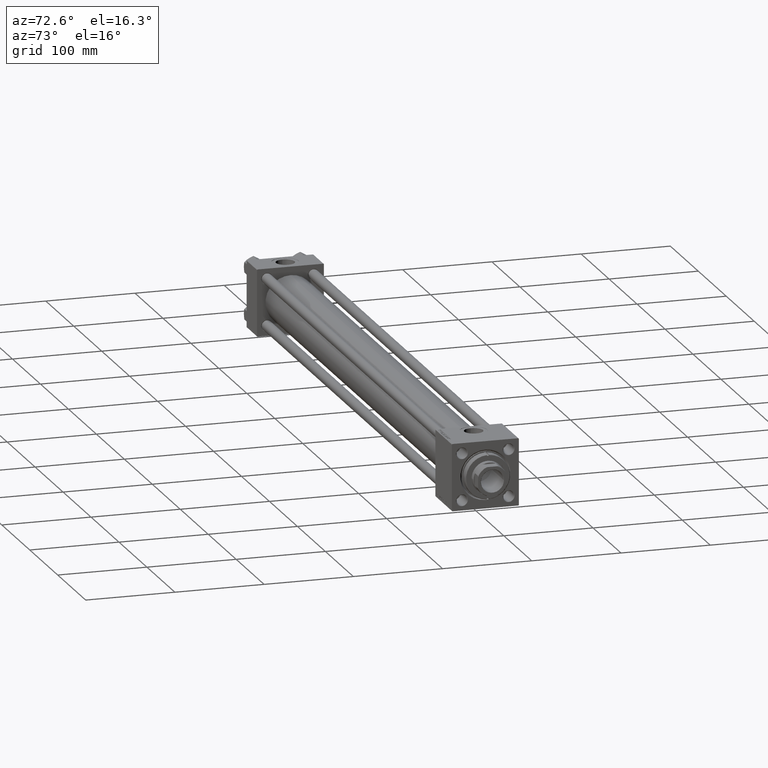
[diagram: clean part render]
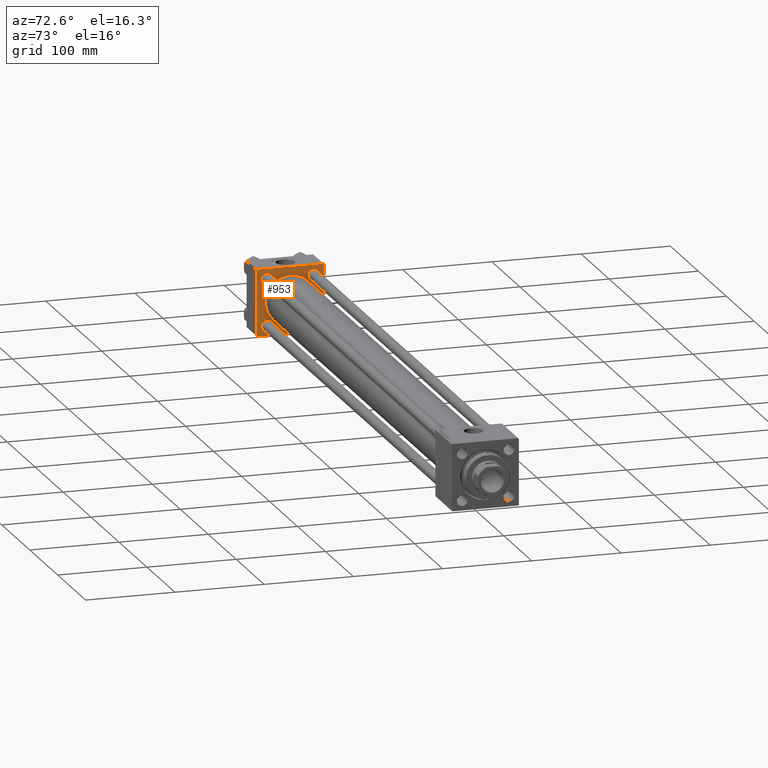
[diagram: same view with one face highlighted and labeled with its STEP entity id]
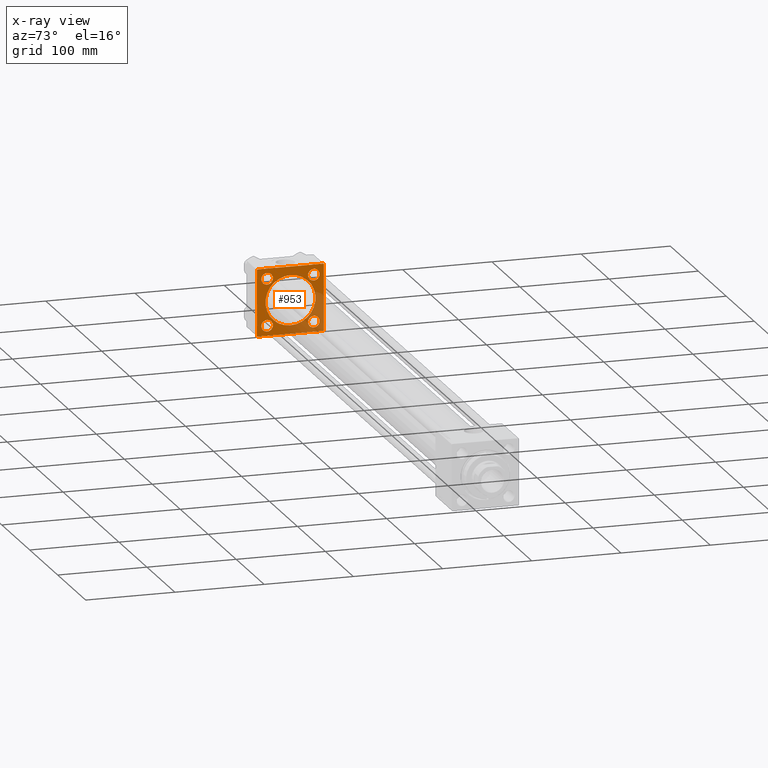
[diagram: x-ray of the same camera — body ghosted, the highlighted face saturated]
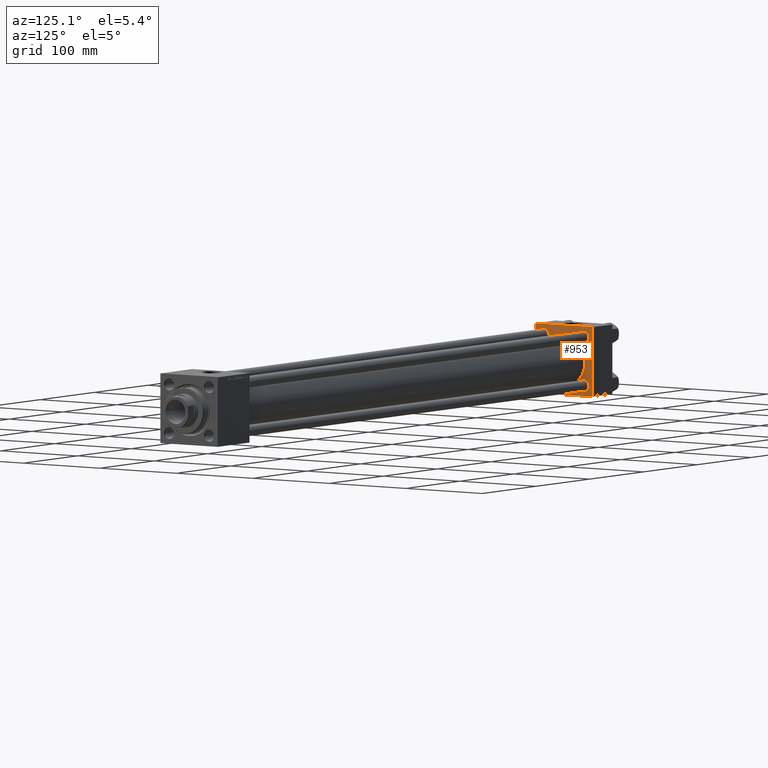
[diagram: same view with one face highlighted and labeled with its STEP entity id]
A machine part, auxiliary view. The second image highlights one B-rep face of the part: STEP entity #953.
The next image is the same camera in x-ray: the body ghosted, the highlighted face saturated — about 28% of this face is hidden behind the body in this view.
A second angle (auxiliary view) of the same face is appended — the face is thin or edge-on in the first view.
In plain terms, the highlighted planar face has unit normal (-1, 0, 0).
Its self-contained STEP definition (entity closure, byte-faithful):
#26 = AXIS2_PLACEMENT_3D ( 'NONE', #42880, #43127, #50289 ) ;
#129 = FACE_BOUND ( 'NONE', #4596, .T. ) ;
#453 = CARTESIAN_POINT ( 'NONE',  ( 37.00000000000000000, -26.14999999999999147, 32.64999999999996305 ) ) ;
#838 = VECTOR ( 'NONE', #38724, 1000.000000000000000 ) ;
#953 = ADVANCED_FACE ( 'NONE', ( #46792, #35044, #11361, #129, #38618, #3721 ), #27374, .F. ) ;
#1377 = LINE ( 'NONE', #32442, #29568 ) ;
#2037 = AXIS2_PLACEMENT_3D ( 'NONE', #41199, #37870, #3221 ) ;
#2524 = ORIENTED_EDGE ( 'NONE', *, *, #39303, .T. ) ;
#2660 = EDGE_LOOP ( 'NONE', ( #16172, #2524 ) ) ;
#2806 = DIRECTION ( 'NONE',  ( 0.000000000000000000, 0.000000000000000000, 1.000000000000000000 ) ) ;
#2933 = AXIS2_PLACEMENT_3D ( 'NONE', #23300, #18974, #34546 ) ;
#3221 = DIRECTION ( 'NONE',  ( 0.000000000000000000, 0.000000000000000000, 1.000000000000000000 ) ) ;
#3276 = VERTEX_POINT ( 'NONE', #45431 ) ;
#3721 = FACE_OUTER_BOUND ( 'NONE', #6156, .T. ) ;
#3746 = DIRECTION ( 'NONE',  ( 0.000000000000000000, 0.000000000000000000, 1.000000000000000000 ) ) ;
#4376 = DIRECTION ( 'NONE',  ( 0.000000000000000000, 0.000000000000000000, 1.000000000000000000 ) ) ;
#4596 = EDGE_LOOP ( 'NONE', ( #7255, #43591 ) ) ;
#4842 = VERTEX_POINT ( 'NONE', #30974 ) ;
#5051 = CARTESIAN_POINT ( 'NONE',  ( 37.00000000000000000, 36.99999999999997868, -37.50000000000000000 ) ) ;
#6152 = LINE ( 'NONE', #21673, #14381 ) ;
#6156 = EDGE_LOOP ( 'NONE', ( #20288, #38672, #12356, #30005, #30531, #41955, #31275, #16790 ) ) ;
#6366 = CARTESIAN_POINT ( 'NONE',  ( 37.00000000000000000, 26.14999999999999858, 26.15000000000000213 ) ) ;
#6446 = LINE ( 'NONE', #10278, #49791 ) ;
#6551 = AXIS2_PLACEMENT_3D ( 'NONE', #20152, #47978, #4376 ) ;
#6926 = VERTEX_POINT ( 'NONE', #25873 ) ;
#7187 = CARTESIAN_POINT ( 'NONE',  ( 37.00000000000000000, 26.14999999999999858, -26.15000000000000213 ) ) ;
#7255 = ORIENTED_EDGE ( 'NONE', *, *, #26559, .T. ) ;
#7276 = CIRCLE ( 'NONE', #48807, 6.499999999999953815 ) ;
#7340 = ORIENTED_EDGE ( 'NONE', *, *, #37062, .F. ) ;
#7555 = DIRECTION ( 'NONE',  ( -1.000000000000000000, 0.000000000000000000, -0.000000000000000000 ) ) ;
#7764 = CARTESIAN_POINT ( 'NONE',  ( 37.00000000000000000, -37.50000000000000000, -37.00000000000003553 ) ) ;
#7907 = ORIENTED_EDGE ( 'NONE', *, *, #11212, .T. ) ;
#8349 = EDGE_LOOP ( 'NONE', ( #7340, #41409 ) ) ;
#8396 = DIRECTION ( 'NONE',  ( -1.000000000000000000, 0.000000000000000000, -0.000000000000000000 ) ) ;
#8404 = VERTEX_POINT ( 'NONE', #9117 ) ;
#8470 = VERTEX_POINT ( 'NONE', #5051 ) ;
#8619 = AXIS2_PLACEMENT_3D ( 'NONE', #7187, #30342, #50264 ) ;
#9117 = CARTESIAN_POINT ( 'NONE',  ( 37.00000000000000000, 26.14999999999999858, 32.65000000000006963 ) ) ;
#9652 = DIRECTION ( 'NONE',  ( 0.000000000000000000, 0.000000000000000000, 1.000000000000000000 ) ) ;
#9800 = VERTEX_POINT ( 'NONE', #7764 ) ;
#10278 = CARTESIAN_POINT ( 'NONE',  ( 37.00000000000000000, 37.49999999999999289, -36.99999999999998579 ) ) ;
#11212 = EDGE_CURVE ( 'NONE', #11566, #3276, #46297, .T. ) ;
#11361 = FACE_BOUND ( 'NONE', #19838, .T. ) ;
#11566 = VERTEX_POINT ( 'NONE', #453 ) ;
#11591 = LINE ( 'NONE', #30693, #32821 ) ;
#11694 = LINE ( 'NONE', #42043, #14275 ) ;
#12018 = CARTESIAN_POINT ( 'NONE',  ( 37.00000000000000000, 26.14999999999999858, -26.15000000000000213 ) ) ;
#12044 = VERTEX_POINT ( 'NONE', #36851 ) ;
#12218 = CARTESIAN_POINT ( 'NONE',  ( 37.00000000000003553, -2.602085213965210642E-15, 0.000000000000000000 ) ) ;
#12356 = ORIENTED_EDGE ( 'NONE', *, *, #32503, .F. ) ;
#12465 = EDGE_CURVE ( 'NONE', #31012, #34825, #48012, .T. ) ;
#12610 = EDGE_CURVE ( 'NONE', #3276, #11566, #7276, .T. ) ;
#14275 = VECTOR ( 'NONE', #38451, 1000.000000000000114 ) ;
#14381 = VECTOR ( 'NONE', #17858, 1000.000000000000000 ) ;
#14754 = CARTESIAN_POINT ( 'NONE',  ( 37.00000000000000000, 37.49999999999999289, 37.50000000000000000 ) ) ;
#15268 = LINE ( 'NONE', #30562, #838 ) ;
#15391 = DIRECTION ( 'NONE',  ( 0.000000000000000000, -0.7071067811865474617, 0.7071067811865474617 ) ) ;
#15526 = VERTEX_POINT ( 'NONE', #24655 ) ;
#15892 = CARTESIAN_POINT ( 'NONE',  ( 37.00000000000000000, 37.49999999999999289, -36.99999999999998579 ) ) ;
#16172 = ORIENTED_EDGE ( 'NONE', *, *, #27338, .T. ) ;
#16790 = ORIENTED_EDGE ( 'NONE', *, *, #46375, .T. ) ;
#17155 = ORIENTED_EDGE ( 'NONE', *, *, #26095, .T. ) ;
#17256 = CIRCLE ( 'NONE', #20484, 6.500000000000064837 ) ;
#17563 = EDGE_CURVE ( 'NONE', #8470, #41719, #15268, .T. ) ;
#17858 = DIRECTION ( 'NONE',  ( 0.000000000000000000, 9.251858538542971581E-17, -1.000000000000000000 ) ) ;
#18327 = DIRECTION ( 'NONE',  ( 0.000000000000000000, -1.000000000000000000, -9.251858538542971581E-17 ) ) ;
#18345 = CIRCLE ( 'NONE', #8619, 6.500000000000057732 ) ;
#18974 = DIRECTION ( 'NONE',  ( -1.000000000000000000, 0.000000000000000000, -0.000000000000000000 ) ) ;
#19073 = DIRECTION ( 'NONE',  ( 0.000000000000000000, 0.7071067811865524577, -0.7071067811865426878 ) ) ;
#19466 = AXIS2_PLACEMENT_3D ( 'NONE', #12218, #35158, #31321 ) ;
#19838 = EDGE_LOOP ( 'NONE', ( #39125, #7907 ) ) ;
#20152 = CARTESIAN_POINT ( 'NONE',  ( 37.00000000000000000, 26.14999999999999858, 26.15000000000000213 ) ) ;
#20288 = ORIENTED_EDGE ( 'NONE', *, *, #17563, .F. ) ;
#20484 = AXIS2_PLACEMENT_3D ( 'NONE', #6366, #22388, #2806 ) ;
#20808 = CARTESIAN_POINT ( 'NONE',  ( 37.00000000000003553, 8.269258236473784371E-16, -28.00000000000000000 ) ) ;
#21094 = DIRECTION ( 'NONE',  ( -1.000000000000000000, 0.000000000000000000, -0.000000000000000000 ) ) ;
#21673 = CARTESIAN_POINT ( 'NONE',  ( 37.00000000000000000, -37.50000000000000711, 37.49999999999999289 ) ) ;
#21927 = VERTEX_POINT ( 'NONE', #15892 ) ;
#22127 = EDGE_CURVE ( 'NONE', #15526, #46600, #49714, .T. ) ;
#22190 = VECTOR ( 'NONE', #18327, 1000.000000000000000 ) ;
#22293 = EDGE_CURVE ( 'NONE', #8404, #12044, #29292, .T. ) ;
#22305 = CARTESIAN_POINT ( 'NONE',  ( 37.00000000000000000, 26.14999999999999858, -19.64999999999994529 ) ) ;
#22388 = DIRECTION ( 'NONE',  ( -1.000000000000000000, 0.000000000000000000, -0.000000000000000000 ) ) ;
#23300 = CARTESIAN_POINT ( 'NONE',  ( 37.00000000000000000, 0.000000000000000000, 0.000000000000000000 ) ) ;
#23456 = DIRECTION ( 'NONE',  ( -1.000000000000000000, 0.000000000000000000, -0.000000000000000000 ) ) ;
#23695 = CARTESIAN_POINT ( 'NONE',  ( 37.00000000000000000, 37.49999999999999289, 37.50000000000000000 ) ) ;
#24643 = EDGE_CURVE ( 'NONE', #8470, #21927, #6446, .T. ) ;
#24655 = CARTESIAN_POINT ( 'NONE',  ( 37.00000000000000000, -26.14999999999999147, -32.64999999999995595 ) ) ;
#24927 = CARTESIAN_POINT ( 'NONE',  ( 37.00000000000000000, -26.14999999999999147, 26.15000000000000924 ) ) ;
#25873 = CARTESIAN_POINT ( 'NONE',  ( 37.00000000000000000, 26.14999999999999858, -32.65000000000006253 ) ) ;
#26095 = EDGE_CURVE ( 'NONE', #46600, #15526, #47418, .T. ) ;
#26559 = EDGE_CURVE ( 'NONE', #12044, #8404, #17256, .T. ) ;
#26888 = CARTESIAN_POINT ( 'NONE',  ( 37.00000000000000000, -26.14999999999999147, -26.15000000000000924 ) ) ;
#27338 = EDGE_CURVE ( 'NONE', #6926, #43468, #35206, .T. ) ;
#27374 = PLANE ( 'NONE',  #2933 ) ;
#27484 = CARTESIAN_POINT ( 'NONE',  ( 37.00000000000000000, -26.14999999999999147, 26.15000000000000924 ) ) ;
#28541 = EDGE_CURVE ( 'NONE', #4842, #38406, #30550, .T. ) ;
#29292 = CIRCLE ( 'NONE', #6551, 6.500000000000064837 ) ;
#29568 = VECTOR ( 'NONE', #19073, 1000.000000000000000 ) ;
#30005 = ORIENTED_EDGE ( 'NONE', *, *, #47083, .T. ) ;
#30154 = CARTESIAN_POINT ( 'NONE',  ( 37.00000000000000000, -37.00000000000002132, -37.50000000000000711 ) ) ;
#30342 = DIRECTION ( 'NONE',  ( -1.000000000000000000, 0.000000000000000000, -0.000000000000000000 ) ) ;
#30531 = ORIENTED_EDGE ( 'NONE', *, *, #28541, .T. ) ;
#30550 = LINE ( 'NONE', #14754, #22190 ) ;
#30562 = CARTESIAN_POINT ( 'NONE',  ( 37.00000000000000000, 37.49999999999999289, -37.50000000000000000 ) ) ;
#30693 = CARTESIAN_POINT ( 'NONE',  ( 37.00000000000000000, 36.99999999999999289, 37.50000000000000000 ) ) ;
#30974 = CARTESIAN_POINT ( 'NONE',  ( 37.00000000000000000, 36.99999999999999289, 37.50000000000000000 ) ) ;
#31012 = VERTEX_POINT ( 'NONE', #20808 ) ;
#31275 = ORIENTED_EDGE ( 'NONE', *, *, #42656, .T. ) ;
#31321 = DIRECTION ( 'NONE',  ( 0.000000000000000000, 0.000000000000000000, 1.000000000000000000 ) ) ;
#31810 = CARTESIAN_POINT ( 'NONE',  ( 37.00000000000000000, -26.14999999999999147, -19.65000000000006253 ) ) ;
#31824 = ORIENTED_EDGE ( 'NONE', *, *, #22127, .T. ) ;
#32096 = CIRCLE ( 'NONE', #2037, 28.00000000000000000 ) ;
#32110 = LINE ( 'NONE', #23695, #36988 ) ;
#32442 = CARTESIAN_POINT ( 'NONE',  ( 37.00000000000000000, -37.00000000000002132, -37.50000000000000711 ) ) ;
#32503 = EDGE_CURVE ( 'NONE', #38094, #21927, #32110, .T. ) ;
#32821 = VECTOR ( 'NONE', #15391, 1000.000000000000114 ) ;
#34546 = DIRECTION ( 'NONE',  ( -0.000000000000000000, 0.000000000000000000, 1.000000000000000000 ) ) ;
#34825 = VERTEX_POINT ( 'NONE', #38290 ) ;
#35044 = FACE_BOUND ( 'NONE', #2660, .T. ) ;
#35158 = DIRECTION ( 'NONE',  ( 1.000000000000000000, -0.000000000000000000, 0.000000000000000000 ) ) ;
#35189 = DIRECTION ( 'NONE',  ( 0.000000000000000000, 0.000000000000000000, -1.000000000000000000 ) ) ;
#35206 = CIRCLE ( 'NONE', #44165, 6.500000000000057732 ) ;
#36811 = CARTESIAN_POINT ( 'NONE',  ( 37.00000000000000000, 37.49999999999999289, 37.00000000000000000 ) ) ;
#36851 = CARTESIAN_POINT ( 'NONE',  ( 37.00000000000000000, 26.14999999999999858, 19.64999999999994174 ) ) ;
#36988 = VECTOR ( 'NONE', #35189, 1000.000000000000000 ) ;
#37062 = EDGE_CURVE ( 'NONE', #34825, #31012, #32096, .T. ) ;
#37677 = VERTEX_POINT ( 'NONE', #49497 ) ;
#37870 = DIRECTION ( 'NONE',  ( 1.000000000000000000, -0.000000000000000000, 0.000000000000000000 ) ) ;
#38048 = DIRECTION ( 'NONE',  ( -0.000000000000000000, 0.7071067811865474617, 0.7071067811865474617 ) ) ;
#38094 = VERTEX_POINT ( 'NONE', #36811 ) ;
#38290 = CARTESIAN_POINT ( 'NONE',  ( 37.00000000000003553, -2.602085213965210642E-15, 28.00000000000000000 ) ) ;
#38406 = VERTEX_POINT ( 'NONE', #44151 ) ;
#38451 = DIRECTION ( 'NONE',  ( -0.000000000000000000, -0.7071067811865474617, -0.7071067811865474617 ) ) ;
#38618 = FACE_BOUND ( 'NONE', #8349, .T. ) ;
#38672 = ORIENTED_EDGE ( 'NONE', *, *, #24643, .T. ) ;
#38724 = DIRECTION ( 'NONE',  ( 0.000000000000000000, -1.000000000000000000, -9.251858538542972814E-17 ) ) ;
#39125 = ORIENTED_EDGE ( 'NONE', *, *, #12610, .T. ) ;
#39280 = DIRECTION ( 'NONE',  ( 0.000000000000000000, 0.000000000000000000, 1.000000000000000000 ) ) ;
#39303 = EDGE_CURVE ( 'NONE', #43468, #6926, #18345, .T. ) ;
#39476 = EDGE_CURVE ( 'NONE', #38406, #37677, #11694, .T. ) ;
#40012 = EDGE_LOOP ( 'NONE', ( #31824, #17155 ) ) ;
#41199 = CARTESIAN_POINT ( 'NONE',  ( 37.00000000000003553, -2.602085213965210642E-15, 0.000000000000000000 ) ) ;
#41409 = ORIENTED_EDGE ( 'NONE', *, *, #12465, .F. ) ;
#41719 = VERTEX_POINT ( 'NONE', #30154 ) ;
#41955 = ORIENTED_EDGE ( 'NONE', *, *, #39476, .T. ) ;
#42043 = CARTESIAN_POINT ( 'NONE',  ( 37.00000000000000000, -37.50000000000000711, 36.99999999999999289 ) ) ;
#42656 = EDGE_CURVE ( 'NONE', #37677, #9800, #6152, .T. ) ;
#42880 = CARTESIAN_POINT ( 'NONE',  ( 37.00000000000000000, -26.14999999999999147, -26.15000000000000924 ) ) ;
#43127 = DIRECTION ( 'NONE',  ( -1.000000000000000000, 0.000000000000000000, -0.000000000000000000 ) ) ;
#43468 = VERTEX_POINT ( 'NONE', #22305 ) ;
#43577 = DIRECTION ( 'NONE',  ( 0.000000000000000000, 0.000000000000000000, 1.000000000000000000 ) ) ;
#43591 = ORIENTED_EDGE ( 'NONE', *, *, #22293, .T. ) ;
#44151 = CARTESIAN_POINT ( 'NONE',  ( 37.00000000000000000, -37.00000000000000711, 37.49999999999999289 ) ) ;
#44165 = AXIS2_PLACEMENT_3D ( 'NONE', #12018, #23456, #39280 ) ;
#45431 = CARTESIAN_POINT ( 'NONE',  ( 37.00000000000000000, -26.14999999999999147, 19.65000000000005542 ) ) ;
#46297 = CIRCLE ( 'NONE', #48740, 6.499999999999953815 ) ;
#46375 = EDGE_CURVE ( 'NONE', #9800, #41719, #1377, .T. ) ;
#46581 = AXIS2_PLACEMENT_3D ( 'NONE', #26888, #7555, #3746 ) ;
#46600 = VERTEX_POINT ( 'NONE', #31810 ) ;
#46792 = FACE_BOUND ( 'NONE', #40012, .T. ) ;
#47083 = EDGE_CURVE ( 'NONE', #38094, #4842, #11591, .T. ) ;
#47418 = CIRCLE ( 'NONE', #46581, 6.499999999999946709 ) ;
#47978 = DIRECTION ( 'NONE',  ( -1.000000000000000000, 0.000000000000000000, -0.000000000000000000 ) ) ;
#48012 = CIRCLE ( 'NONE', #19466, 28.00000000000000000 ) ;
#48740 = AXIS2_PLACEMENT_3D ( 'NONE', #27484, #8396, #43577 ) ;
#48807 = AXIS2_PLACEMENT_3D ( 'NONE', #24927, #21094, #9652 ) ;
#49497 = CARTESIAN_POINT ( 'NONE',  ( 37.00000000000000000, -37.50000000000000711, 36.99999999999999289 ) ) ;
#49714 = CIRCLE ( 'NONE', #26, 6.499999999999946709 ) ;
#49791 = VECTOR ( 'NONE', #38048, 1000.000000000000114 ) ;
#50264 = DIRECTION ( 'NONE',  ( 0.000000000000000000, 0.000000000000000000, 1.000000000000000000 ) ) ;
#50289 = DIRECTION ( 'NONE',  ( 0.000000000000000000, 0.000000000000000000, 1.000000000000000000 ) ) ;